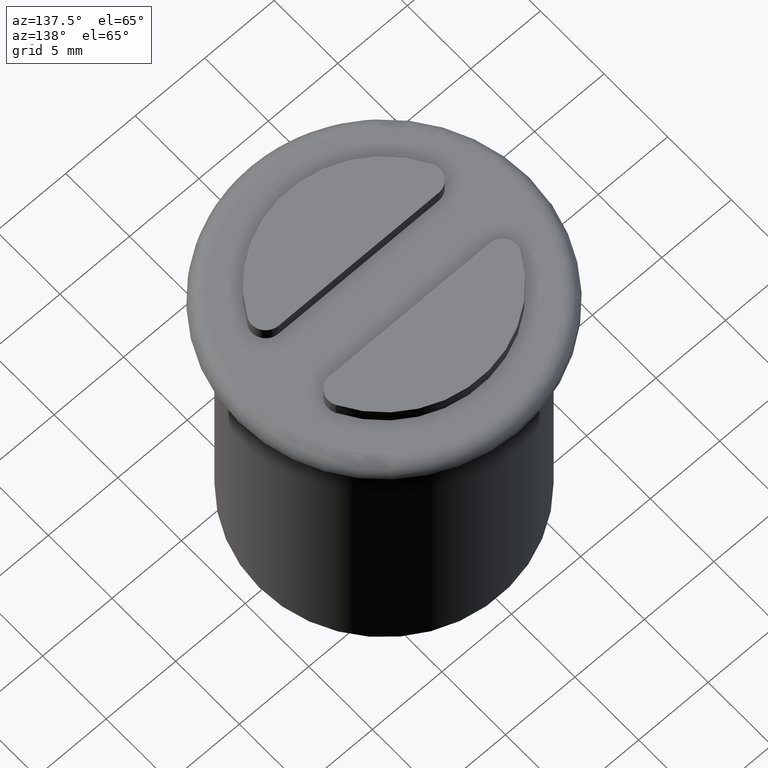
[diagram: clean part render]
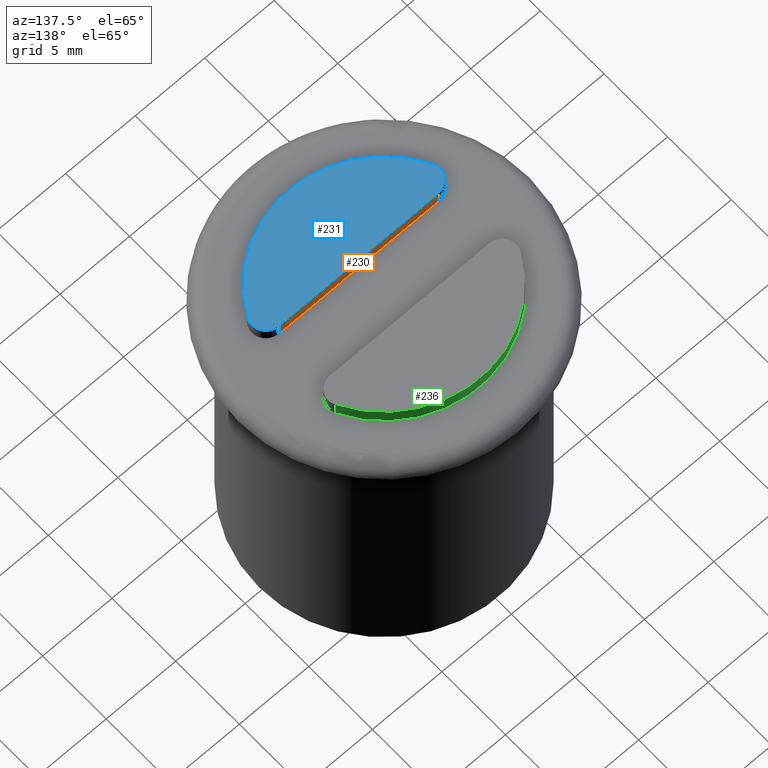
[diagram: same view with three faces highlighted in distinct colors, each labeled with its STEP entity id]
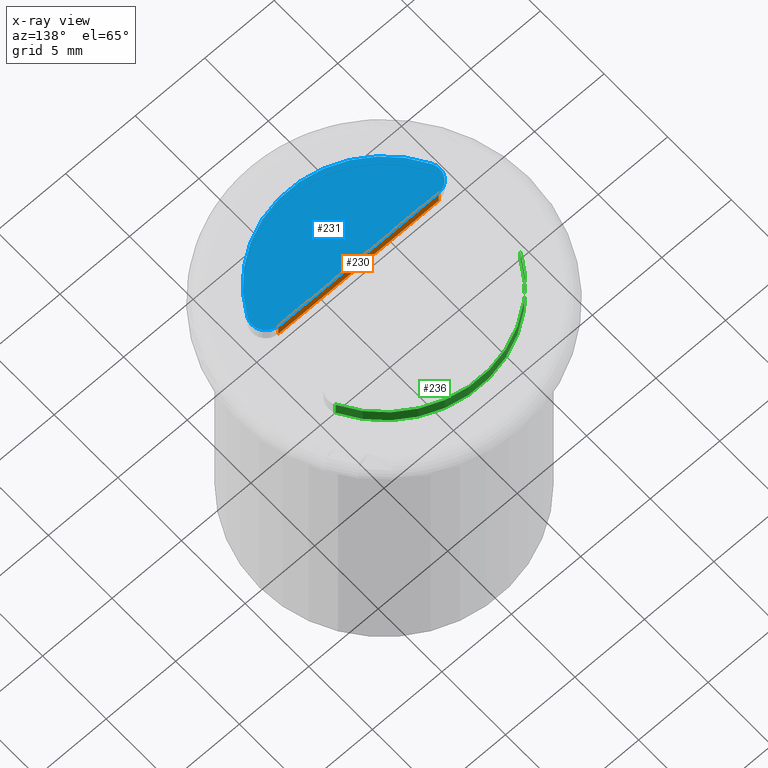
[diagram: x-ray of the same camera — body ghosted, the three highlighted faces saturated]
A machine part, auxiliary view with three faces highlighted in distinct colors.
The next image is the same camera in x-ray (body ghosted, the three faces saturated) — at least one of them is partly hidden behind the body in this view.
Their STEP definitions:

[orange] entity #230 — the highlighted planar face has unit normal (0, -1, 0).
#20=PLANE('',#249);
#28=FACE_OUTER_BOUND('',#43,.T.);
#43=EDGE_LOOP('',(#154,#155,#156,#157));
#62=LINE('',#359,#74);
#64=LINE('',#365,#76);
#65=LINE('',#367,#77);
#66=LINE('',#368,#78);
#74=VECTOR('',#283,1.);
#76=VECTOR('',#289,11.5325625946708);
#77=VECTOR('',#290,1.);
#78=VECTOR('',#291,11.5325625946708);
#103=VERTEX_POINT('',#356);
#104=VERTEX_POINT('',#358);
#106=VERTEX_POINT('',#364);
#107=VERTEX_POINT('',#366);
#123=EDGE_CURVE('',#103,#104,#62,.T.);
#126=EDGE_CURVE('',#106,#103,#64,.T.);
#127=EDGE_CURVE('',#107,#106,#65,.T.);
#128=EDGE_CURVE('',#107,#104,#66,.T.);
#154=ORIENTED_EDGE('',*,*,#123,.F.);
#155=ORIENTED_EDGE('',*,*,#126,.F.);
#156=ORIENTED_EDGE('',*,*,#127,.F.);
#157=ORIENTED_EDGE('',*,*,#128,.T.);
#230=ADVANCED_FACE('',(#28),#20,.F.);
#249=AXIS2_PLACEMENT_3D('',#363,#287,#288);
#283=DIRECTION('',(0.,0.,-1.));
#287=DIRECTION('center_axis',(1.21430643318377E-16,-1.,0.));
#288=DIRECTION('ref_axis',(-1.,-1.11022302462516E-16,0.));
#289=DIRECTION('',(-1.,-1.21430643318377E-16,0.));
#290=DIRECTION('',(0.,0.,1.));
#291=DIRECTION('',(-1.,-1.21430643318377E-16,0.));
#356=CARTESIAN_POINT('',(-5.7662812973354,-2.,25.));
#358=CARTESIAN_POINT('',(-5.7662812973354,-2.,24.));
#359=CARTESIAN_POINT('',(-5.7662812973354,-2.,24.));
#363=CARTESIAN_POINT('Origin',(8.,-2.,25.));
#364=CARTESIAN_POINT('',(5.7662812973354,-2.,25.));
#365=CARTESIAN_POINT('',(4.,-2.,25.));
#366=CARTESIAN_POINT('',(5.7662812973354,-2.,24.));
#367=CARTESIAN_POINT('',(5.7662812973354,-2.,24.));
#368=CARTESIAN_POINT('',(8.,-2.,24.));

[blue] entity #231 — the highlighted planar face has unit normal (0, 0, 1).
#21=PLANE('',#250);
#29=FACE_OUTER_BOUND('',#44,.T.);
#44=EDGE_LOOP('',(#158,#159,#160,#161));
#64=LINE('',#365,#76);
#76=VECTOR('',#289,11.5325625946708);
#86=CIRCLE('',#247,1.);
#88=CIRCLE('',#251,7.5);
#89=CIRCLE('',#252,1.);
#102=VERTEX_POINT('',#355);
#103=VERTEX_POINT('',#356);
#106=VERTEX_POINT('',#364);
#108=VERTEX_POINT('',#370);
#122=EDGE_CURVE('',#102,#103,#86,.T.);
#126=EDGE_CURVE('',#106,#103,#64,.T.);
#129=EDGE_CURVE('',#102,#108,#88,.T.);
#130=EDGE_CURVE('',#106,#108,#89,.T.);
#158=ORIENTED_EDGE('',*,*,#122,.F.);
#159=ORIENTED_EDGE('',*,*,#129,.T.);
#160=ORIENTED_EDGE('',*,*,#130,.F.);
#161=ORIENTED_EDGE('',*,*,#126,.T.);
#231=ADVANCED_FACE('',(#29),#21,.T.);
#247=AXIS2_PLACEMENT_3D('',#357,#281,#282);
#250=AXIS2_PLACEMENT_3D('',#369,#292,#293);
#251=AXIS2_PLACEMENT_3D('',#371,#294,#295);
#252=AXIS2_PLACEMENT_3D('',#372,#296,#297);
#281=DIRECTION('center_axis',(0.,0.,-1.));
#282=DIRECTION('ref_axis',(-0.85485041426511,0.518874521662771,0.));
#289=DIRECTION('',(-1.,-1.21430643318377E-16,0.));
#292=DIRECTION('center_axis',(0.,0.,1.));
#293=DIRECTION('ref_axis',(1.,0.,0.));
#294=DIRECTION('center_axis',(0.,0.,1.));
#295=DIRECTION('ref_axis',(-1.,0.,0.));
#296=DIRECTION('center_axis',(0.,0.,-1.));
#297=DIRECTION('ref_axis',(0.854850414265111,0.51887452166277,0.));
#355=CARTESIAN_POINT('',(-6.65340149692546,-3.46153846153846,25.));
#356=CARTESIAN_POINT('',(-5.7662812973354,-2.,25.));
#357=CARTESIAN_POINT('Origin',(-5.7662812973354,-3.,25.));
#364=CARTESIAN_POINT('',(5.7662812973354,-2.,25.));
#365=CARTESIAN_POINT('',(4.,-2.,25.));
#369=CARTESIAN_POINT('Origin',(-3.23256652641189E-16,1.2335811384724E-16,
25.));
#370=CARTESIAN_POINT('',(6.65340149692546,-3.46153846153846,25.));
#371=CARTESIAN_POINT('Origin',(0.,0.,25.));
#372=CARTESIAN_POINT('Origin',(5.7662812973354,-3.,25.));

[green] entity #236 — the highlighted cylindrical surface (partial cylindrical patch) has radius 7.5 mm, axis along (0, 0, 1).
#34=FACE_OUTER_BOUND('',#49,.T.);
#49=EDGE_LOOP('',(#178,#179,#180,#181));
#68=LINE('',#382,#80);
#73=LINE('',#397,#85);
#80=VECTOR('',#307,0.999999999999996);
#85=VECTOR('',#322,0.999999999999996);
#95=CIRCLE('',#263,7.5);
#96=CIRCLE('',#264,7.5);
#111=VERTEX_POINT('',#379);
#112=VERTEX_POINT('',#381);
#116=VERTEX_POINT('',#393);
#117=VERTEX_POINT('',#395);
#134=EDGE_CURVE('',#111,#112,#68,.T.);
#142=EDGE_CURVE('',#117,#116,#73,.T.);
#143=EDGE_CURVE('',#116,#111,#95,.T.);
#144=EDGE_CURVE('',#112,#117,#96,.T.);
#178=ORIENTED_EDGE('',*,*,#134,.F.);
#179=ORIENTED_EDGE('',*,*,#143,.F.);
#180=ORIENTED_EDGE('',*,*,#142,.F.);
#181=ORIENTED_EDGE('',*,*,#144,.F.);
#210=CYLINDRICAL_SURFACE('',#262,7.5);
#236=ADVANCED_FACE('',(#34),#210,.T.);
#262=AXIS2_PLACEMENT_3D('',#398,#323,#324);
#263=AXIS2_PLACEMENT_3D('',#399,#325,#326);
#264=AXIS2_PLACEMENT_3D('',#400,#327,#328);
#307=DIRECTION('',(0.,0.,-1.));
#322=DIRECTION('',(0.,0.,1.));
#323=DIRECTION('center_axis',(0.,0.,1.));
#324=DIRECTION('ref_axis',(-1.,0.,0.));
#325=DIRECTION('center_axis',(0.,0.,1.));
#326=DIRECTION('ref_axis',(-1.,0.,0.));
#327=DIRECTION('center_axis',(0.,0.,-1.));
#328=DIRECTION('ref_axis',(-1.,0.,0.));
#379=CARTESIAN_POINT('',(-6.65340149692546,3.46153846153846,25.));
#381=CARTESIAN_POINT('',(-6.65340149692546,3.46153846153846,24.));
#382=CARTESIAN_POINT('',(-6.65340149692546,3.46153846153846,24.));
#393=CARTESIAN_POINT('',(6.65340149692546,3.46153846153846,25.));
#395=CARTESIAN_POINT('',(6.65340149692546,3.46153846153846,24.));
#397=CARTESIAN_POINT('',(6.65340149692546,3.46153846153846,24.));
#398=CARTESIAN_POINT('Origin',(0.,0.,24.));
#399=CARTESIAN_POINT('Origin',(0.,0.,25.));
#400=CARTESIAN_POINT('Origin',(0.,0.,24.));